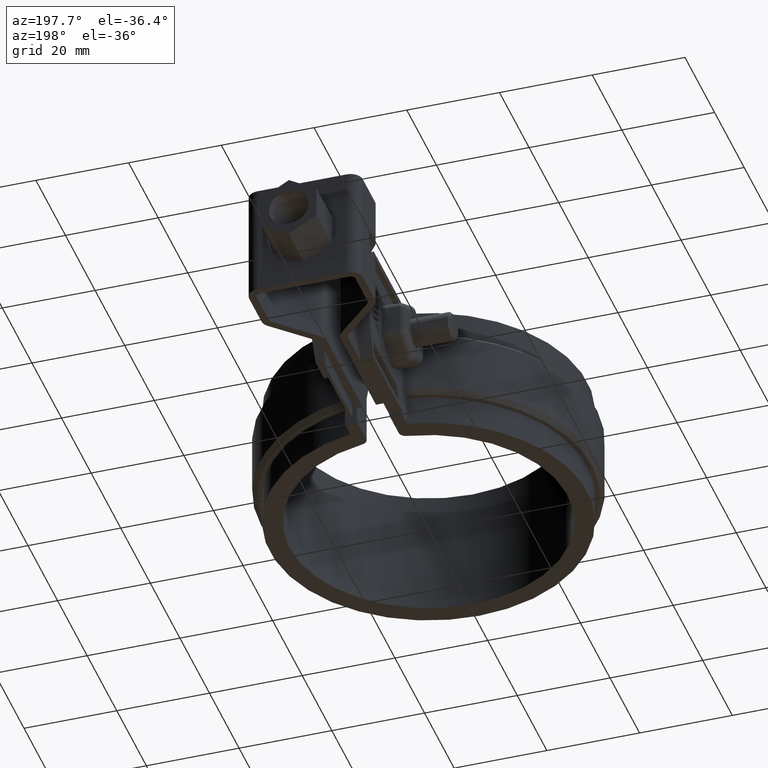
[diagram: clean part render]
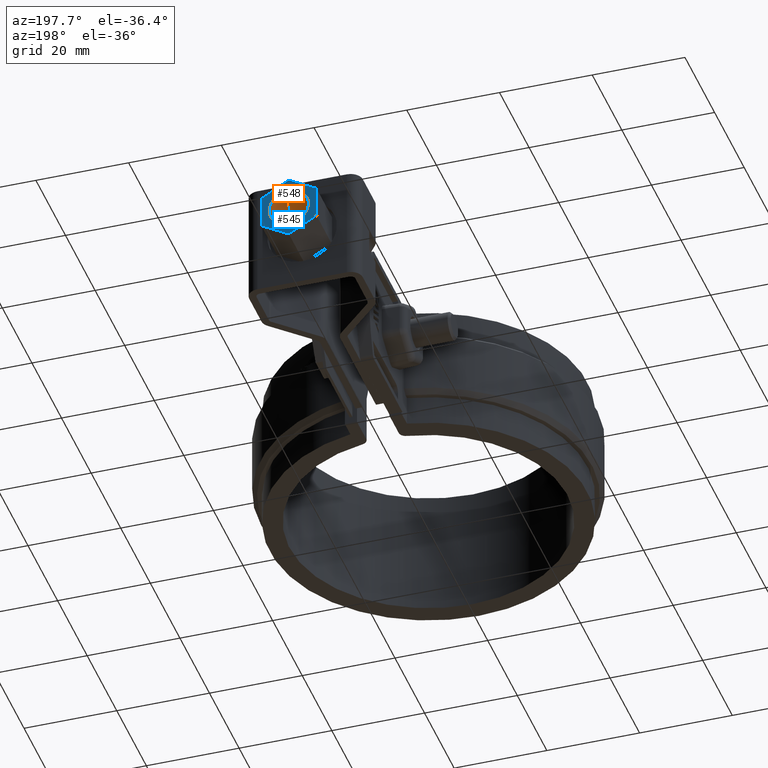
[diagram: same view with the hole feature highlighted: cylindrical wall and planar end face, labeled with their STEP entity ids]
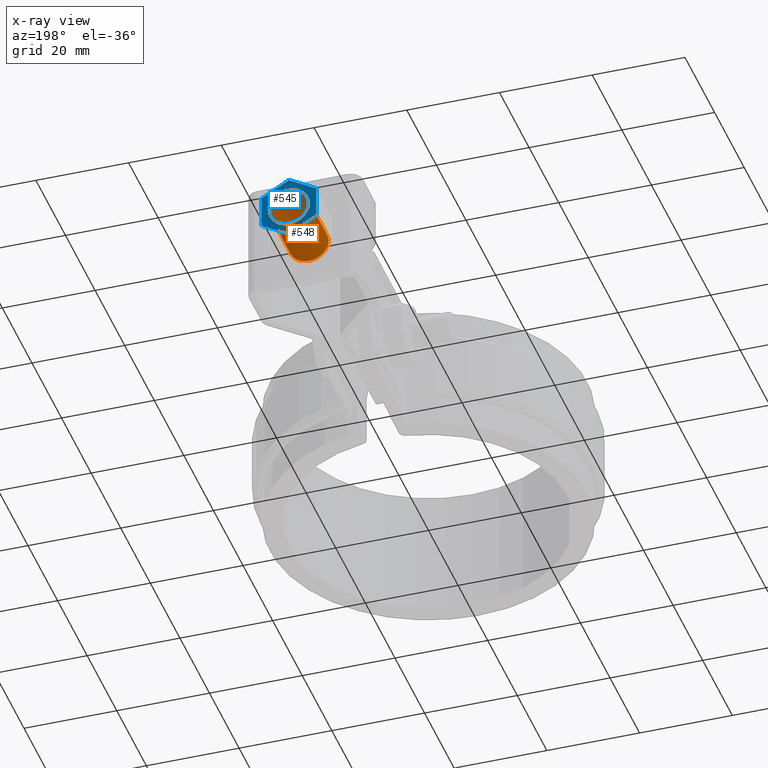
[diagram: x-ray of the same camera — body ghosted, the hole faces saturated]
A machine part, auxiliary view. The highlighted faces form one hole feature of diameter 8.5 mm: the cylindrical wall (entity #548, orange) and its adjacent planar end face (entity #545, blue) — they share a circular edge in the B-rep.
The next image is the same camera in x-ray (body ghosted, the hole faces saturated) — the bore reads through the body.
Wall:
#548 = ADVANCED_FACE( '', ( #1101, #1102 ), #1103, .F. );
#1101 = FACE_OUTER_BOUND( '', #2356, .T. );
#1102 = FACE_OUTER_BOUND( '', #2357, .T. );
#1103 = CYLINDRICAL_SURFACE( '', #2358, 4.25000000000000 );
#2356 = EDGE_LOOP( '', ( #5530 ) );
#2357 = EDGE_LOOP( '', ( #5531 ) );
#2358 = AXIS2_PLACEMENT_3D( '', #5532, #5533, #5534 );
#5530 = ORIENTED_EDGE( '', *, *, #7331, .F. );
#5531 = ORIENTED_EDGE( '', *, *, #7317, .F. );
#5532 = CARTESIAN_POINT( '', ( -4.85756630937764E-011, 76.5515111814454, -12.5000000083937 ) );
#5533 = DIRECTION( '', ( 8.95987727456561E-014, -1.00000000000000, 6.36784791563427E-011 ) );
#5534 = DIRECTION( '', ( 1.00000000000000, 8.95987727205977E-014, -3.93514245410506E-013 ) );
#7317 = EDGE_CURVE( '', #8591, #8591, #8592, .T. );
#7331 = EDGE_CURVE( '', #8615, #8615, #8616, .T. );
#8591 = VERTEX_POINT( '', #12357 );
#8592 = CIRCLE( '', #12358, 4.25000000000000 );
#8615 = VERTEX_POINT( '', #12393 );
#8616 = CIRCLE( '', #12394, 4.25000000000000 );
#12357 = CARTESIAN_POINT( '', ( 4.24999999995104, 80.8015111814778, -12.5000000086660 ) );
#12358 = AXIS2_PLACEMENT_3D( '', #14086, #14087, #14088 );
#12393 = CARTESIAN_POINT( '', ( 4.24999999994983, 94.4015111814779, -12.5000000095320 ) );
#12394 = AXIS2_PLACEMENT_3D( '', #14104, #14105, #14106 );
#14086 = CARTESIAN_POINT( '', ( -4.89564578779483E-011, 80.8015111814775, -12.5000000086643 ) );
#14087 = DIRECTION( '', ( -8.95987727456561E-014, 1.00000000000000, -6.36784791563427E-011 ) );
#14088 = DIRECTION( '', ( 1.00000000000000, 8.95987727205765E-014, -3.93847312317893E-013 ) );
#14104 = CARTESIAN_POINT( '', ( -5.01750011872892E-011, 94.4015111814775, -12.5000000095303 ) );
#14105 = DIRECTION( '', ( 8.95987727456561E-014, -1.00000000000000, 6.36784791563427E-011 ) );
#14106 = DIRECTION( '', ( 1.00000000000000, 8.95987727205977E-014, -3.93514245410506E-013 ) );
End face:
#545 = ADVANCED_FACE( '', ( #1094, #1095 ), #1096, .T. );
#1094 = FACE_OUTER_BOUND( '', #2349, .T. );
#1095 = FACE_BOUND( '', #2350, .T. );
#1096 = PLANE( '', #2351 );
#2349 = EDGE_LOOP( '', ( #5506, #5507, #5508, #5509, #5510, #5511 ) );
#2350 = EDGE_LOOP( '', ( #5512 ) );
#2351 = AXIS2_PLACEMENT_3D( '', #5513, #5514, #5515 );
#5506 = ORIENTED_EDGE( '', *, *, #7314, .T. );
#5507 = ORIENTED_EDGE( '', *, *, #7328, .T. );
#5508 = ORIENTED_EDGE( '', *, *, #7329, .T. );
#5509 = ORIENTED_EDGE( '', *, *, #7330, .T. );
#5510 = ORIENTED_EDGE( '', *, *, #7326, .T. );
#5511 = ORIENTED_EDGE( '', *, *, #7319, .T. );
#5512 = ORIENTED_EDGE( '', *, *, #7331, .T. );
#5513 = CARTESIAN_POINT( '', ( 5.94999999994848, 94.4015111812593, -15.9352341112109 ) );
#5514 = DIRECTION( '', ( -3.63318427753343E-034, 1.00000000000000, -6.36784791563427E-011 ) );
#5515 = DIRECTION( '', ( 1.00000000000000, 0.000000000000000, -5.70551358271808E-024 ) );
#7314 = EDGE_CURVE( '', #8586, #8584, #8587, .T. );
#7319 = EDGE_CURVE( '', #8595, #8586, #8596, .T. );
#7326 = EDGE_CURVE( '', #8607, #8595, #8608, .T. );
#7328 = EDGE_CURVE( '', #8584, #8610, #8611, .T. );
#7329 = EDGE_CURVE( '', #8610, #8612, #8613, .T. );
#7330 = EDGE_CURVE( '', #8612, #8607, #8614, .T. );
#7331 = EDGE_CURVE( '', #8615, #8615, #8616, .T. );
#8584 = VERTEX_POINT( '', #12347 );
#8586 = VERTEX_POINT( '', #12350 );
#8587 = LINE( '', #12351, #12352 );
#8595 = VERTEX_POINT( '', #12362 );
#8596 = LINE( '', #12363, #12364 );
#8607 = VERTEX_POINT( '', #12380 );
#8608 = LINE( '', #12381, #12382 );
#8610 = VERTEX_POINT( '', #12385 );
#8611 = LINE( '', #12386, #12387 );
#8612 = VERTEX_POINT( '', #12388 );
#8613 = LINE( '', #12389, #12390 );
#8614 = LINE( '', #12391, #12392 );
#8615 = VERTEX_POINT( '', #12393 );
#8616 = CIRCLE( '', #12394, 4.25000000000000 );
#12347 = CARTESIAN_POINT( '', ( 5.94999999994848, 94.4015111812593, -15.9352341112109 ) );
#12350 = CARTESIAN_POINT( '', ( 5.94999999995118, 94.4015111816968, -9.06476590785436 ) );
#12351 = CARTESIAN_POINT( '', ( 5.94999999995118, 94.4015111816968, -9.06476590785436 ) );
#12352 = VECTOR( '', #14081, 1000.00000000000 );
#12362 = CARTESIAN_POINT( '', ( -4.74729888788919E-011, 94.4015111819150, -5.62953180617376 ) );
#12363 = CARTESIAN_POINT( '', ( -4.74669173467260E-011, 94.4015111819150, -5.62953180617376 ) );
#12364 = VECTOR( '', #14090, 1000.00000000000 );
#12380 = CARTESIAN_POINT( '', ( -5.95000000004882, 94.4015111816957, -9.06476590784970 ) );
#12381 = CARTESIAN_POINT( '', ( -5.95000000004883, 94.4015111816957, -9.06476590784969 ) );
#12382 = VECTOR( '', #14099, 1000.00000000000 );
#12385 = CARTESIAN_POINT( '', ( -5.28778808574246E-011, 94.4015111810400, -19.3704682128869 ) );
#12386 = CARTESIAN_POINT( '', ( 5.94999999994848, 94.4015111812593, -15.9352341112109 ) );
#12387 = VECTOR( '', #14101, 1000.00000000000 );
#12388 = CARTESIAN_POINT( '', ( -5.95000000005152, 94.4015111812582, -15.9352341112062 ) );
#12389 = CARTESIAN_POINT( '', ( -5.28761461339486E-011, 94.4015111810400, -19.3704682128869 ) );
#12390 = VECTOR( '', #14102, 1000.00000000000 );
#12391 = CARTESIAN_POINT( '', ( -5.95000000005153, 94.4015111812582, -15.9352341112062 ) );
#12392 = VECTOR( '', #14103, 1000.00000000000 );
#12393 = CARTESIAN_POINT( '', ( 4.24999999994983, 94.4015111814779, -12.5000000095320 ) );
#12394 = AXIS2_PLACEMENT_3D( '', #14104, #14105, #14106 );
#14081 = DIRECTION( '', ( -3.93458734253569E-013, -6.36784791563427E-011, -1.00000000000000 ) );
#14090 = DIRECTION( '', ( 0.866025403784242, -3.17616447648474E-011, -0.500000000000341 ) );
#14099 = DIRECTION( '', ( 0.866025403784636, 3.19168343914953E-011, 0.499999999999659 ) );
#14101 = DIRECTION( '', ( -0.866025403784636, -3.19168343914953E-011, -0.499999999999659 ) );
#14102 = DIRECTION( '', ( -0.866025403784242, 3.17616447648474E-011, 0.500000000000341 ) );
#14103 = DIRECTION( '', ( 3.93902823463419E-013, 6.36784791563427E-011, 1.00000000000000 ) );
#14104 = CARTESIAN_POINT( '', ( -5.01750011872892E-011, 94.4015111814775, -12.5000000095303 ) );
#14105 = DIRECTION( '', ( 8.95987727456561E-014, -1.00000000000000, 6.36784791563427E-011 ) );
#14106 = DIRECTION( '', ( 1.00000000000000, 8.95987727205977E-014, -3.93514245410506E-013 ) );